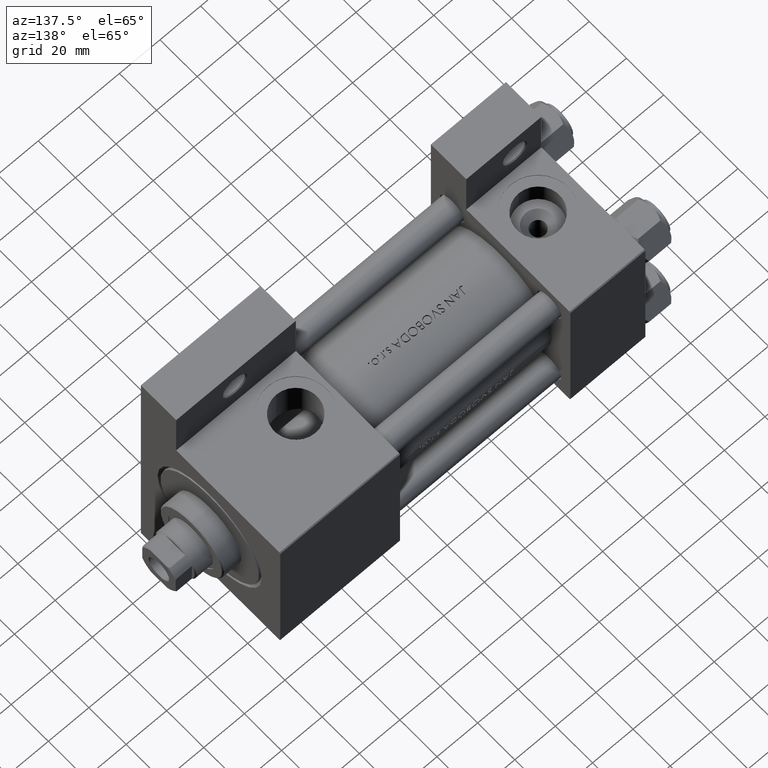
[diagram: clean part render]
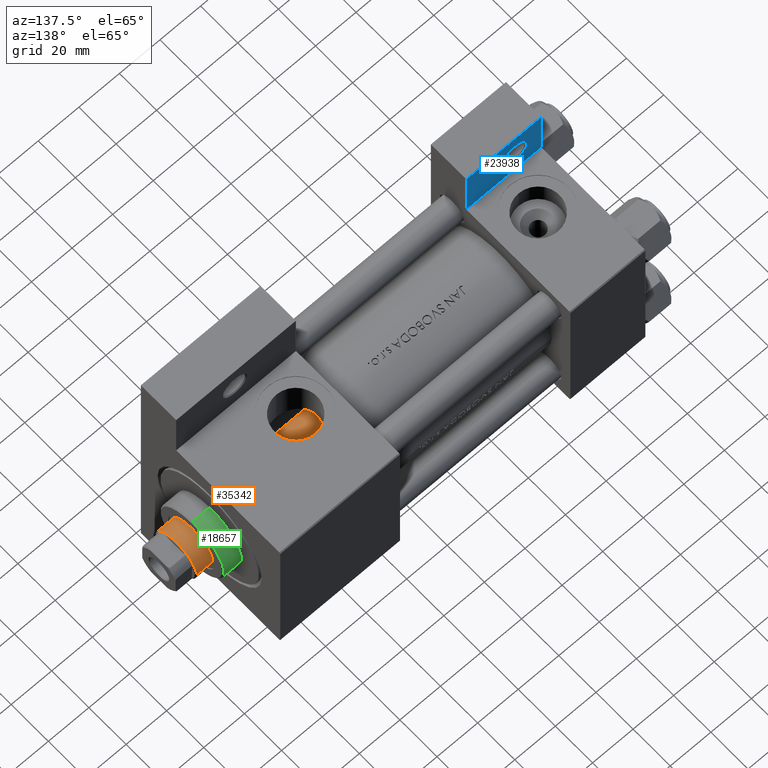
[diagram: same view with three faces highlighted in distinct colors, each labeled with its STEP entity id]
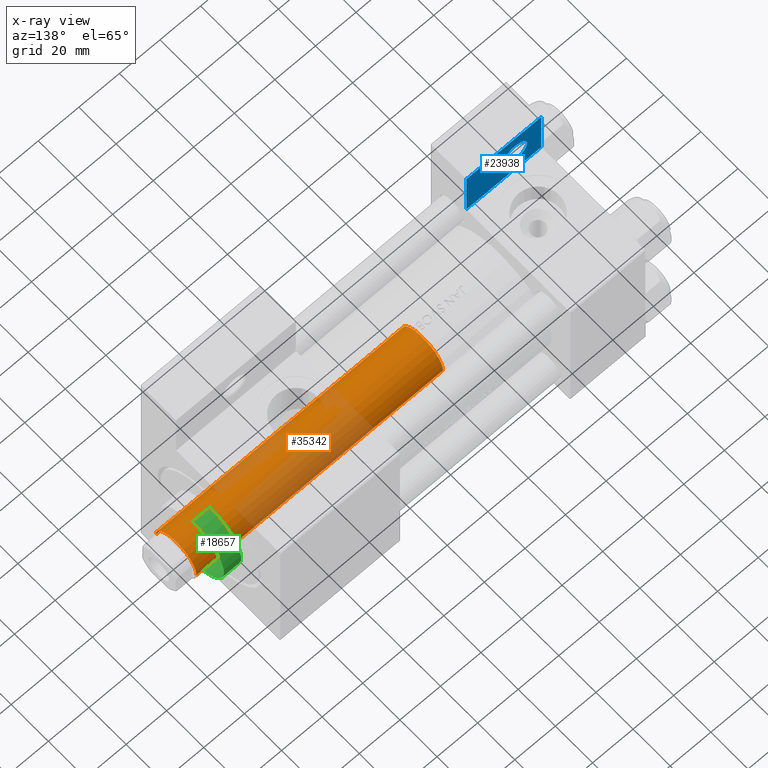
[diagram: x-ray of the same camera — body ghosted, the three highlighted faces saturated]
A machine part, auxiliary view with three faces highlighted in distinct colors.
The next image is the same camera in x-ray (body ghosted, the three faces saturated) — at least one of them is partly hidden behind the body in this view.
Their STEP definitions:

[orange] entity #35342 — the highlighted cylindrical surface (edge-blend (fillet) strip) has radius 11 mm, axis along (-1, 0, 0).
#480 = VERTEX_POINT ( 'NONE', #23923 ) ;
#1295 = DIRECTION ( 'NONE',  ( -0.000000000000000000, -0.000000000000000000, -1.000000000000000000 ) ) ;
#1781 = LINE ( 'NONE', #20448, #4242 ) ;
#3460 = ORIENTED_EDGE ( 'NONE', *, *, #4768, .F. ) ;
#4242 = VECTOR ( 'NONE', #1295, 1000.000000000000000 ) ;
#4662 = DIRECTION ( 'NONE',  ( -1.000000000000000000, 0.000000000000000000, 0.000000000000000000 ) ) ;
#4768 = EDGE_CURVE ( 'NONE', #16381, #49233, #35854, .T. ) ;
#5662 = AXIS2_PLACEMENT_3D ( 'NONE', #8411, #38769, #4662 ) ;
#6436 = EDGE_CURVE ( 'NONE', #480, #49233, #38948, .T. ) ;
#6494 = CARTESIAN_POINT ( 'NONE',  ( 0.000000000000000000, 0.000000000000000000, 159.5000000000000853 ) ) ;
#8411 = CARTESIAN_POINT ( 'NONE',  ( 0.000000000000000000, 0.000000000000000000, 160.0000000000000000 ) ) ;
#11604 = ORIENTED_EDGE ( 'NONE', *, *, #39563, .T. ) ;
#11642 = DIRECTION ( 'NONE',  ( 1.000000000000000000, 0.000000000000000000, 0.000000000000000000 ) ) ;
#12618 = CARTESIAN_POINT ( 'NONE',  ( 0.000000000000000000, 0.000000000000000000, 38.00000000000000000 ) ) ;
#16381 = VERTEX_POINT ( 'NONE', #37018 ) ;
#19588 = VERTEX_POINT ( 'NONE', #34887 ) ;
#20331 = DIRECTION ( 'NONE',  ( 0.000000000000000000, 0.000000000000000000, 1.000000000000000000 ) ) ;
#20448 = CARTESIAN_POINT ( 'NONE',  ( -11.00000000000000000, 0.000000000000000000, 160.0000000000000000 ) ) ;
#22221 = ORIENTED_EDGE ( 'NONE', *, *, #48637, .T. ) ;
#22695 = ORIENTED_EDGE ( 'NONE', *, *, #6436, .T. ) ;
#23923 = CARTESIAN_POINT ( 'NONE',  ( -11.00000000000000000, 0.000000000000000000, 38.00000000000000000 ) ) ;
#24242 = DIRECTION ( 'NONE',  ( 0.000000000000000000, 0.000000000000000000, -1.000000000000000000 ) ) ;
#24274 = AXIS2_PLACEMENT_3D ( 'NONE', #6494, #24242, #39424 ) ;
#24556 = CYLINDRICAL_SURFACE ( 'NONE', #5662, 11.00000000000000000 ) ;
#24640 = DIRECTION ( 'NONE',  ( -0.000000000000000000, -0.000000000000000000, -1.000000000000000000 ) ) ;
#33811 = CIRCLE ( 'NONE', #24274, 11.00000000000000000 ) ;
#34158 = AXIS2_PLACEMENT_3D ( 'NONE', #12618, #20331, #11642 ) ;
#34887 = CARTESIAN_POINT ( 'NONE',  ( -11.00000000000000000, 0.000000000000000000, 159.5000000000000853 ) ) ;
#35135 = CARTESIAN_POINT ( 'NONE',  ( 11.00000000000000000, 1.347111479062088207E-15, 160.0000000000000000 ) ) ;
#35342 = ADVANCED_FACE ( 'NONE', ( #42742 ), #24556, .T. ) ;
#35854 = LINE ( 'NONE', #35135, #47670 ) ;
#36146 = EDGE_LOOP ( 'NONE', ( #3460, #22221, #11604, #22695 ) ) ;
#37018 = CARTESIAN_POINT ( 'NONE',  ( 11.00000000000000000, 1.347111479062088207E-15, 159.5000000000000853 ) ) ;
#38769 = DIRECTION ( 'NONE',  ( -0.000000000000000000, -0.000000000000000000, -1.000000000000000000 ) ) ;
#38948 = CIRCLE ( 'NONE', #34158, 11.00000000000000000 ) ;
#39424 = DIRECTION ( 'NONE',  ( 1.000000000000000000, 0.000000000000000000, 0.000000000000000000 ) ) ;
#39563 = EDGE_CURVE ( 'NONE', #19588, #480, #1781, .T. ) ;
#40723 = CARTESIAN_POINT ( 'NONE',  ( 11.00000000000000000, 1.347111479062088207E-15, 38.00000000000000000 ) ) ;
#42742 = FACE_OUTER_BOUND ( 'NONE', #36146, .T. ) ;
#47670 = VECTOR ( 'NONE', #24640, 1000.000000000000000 ) ;
#48637 = EDGE_CURVE ( 'NONE', #16381, #19588, #33811, .T. ) ;
#49233 = VERTEX_POINT ( 'NONE', #40723 ) ;

[blue] entity #23938 — the highlighted planar face has unit normal (0, -1, 0).
#2466 = VERTEX_POINT ( 'NONE', #16027 ) ;
#3847 = DIRECTION ( 'NONE',  ( -1.000000000000000000, 0.000000000000000000, 0.000000000000000000 ) ) ;
#5033 = CARTESIAN_POINT ( 'NONE',  ( 12.99999999999999822, -51.00000000000001421, -18.50000000000000000 ) ) ;
#5377 = PLANE ( 'NONE',  #26876 ) ;
#9112 = LINE ( 'NONE', #9611, #16830 ) ;
#9460 = ORIENTED_EDGE ( 'NONE', *, *, #39034, .T. ) ;
#9611 = CARTESIAN_POINT ( 'NONE',  ( 37.00000000000000000, -63.49999999999998579, -18.50000000000000355 ) ) ;
#10049 = ORIENTED_EDGE ( 'NONE', *, *, #29887, .T. ) ;
#11003 = ORIENTED_EDGE ( 'NONE', *, *, #20732, .T. ) ;
#11821 = EDGE_LOOP ( 'NONE', ( #10049, #9460 ) ) ;
#12511 = DIRECTION ( 'NONE',  ( -1.000000000000000000, 0.000000000000000000, 0.000000000000000000 ) ) ;
#12535 = LINE ( 'NONE', #37941, #21779 ) ;
#12685 = CARTESIAN_POINT ( 'NONE',  ( 3.977209754999747208E-16, -63.50000000000000000, -18.50000000000000355 ) ) ;
#12780 = CIRCLE ( 'NONE', #38219, 5.999500000000050015 ) ;
#12863 = FACE_BOUND ( 'NONE', #11821, .T. ) ;
#16027 = CARTESIAN_POINT ( 'NONE',  ( 37.00000000000000000, -37.50000000000000000, -18.50000000000000355 ) ) ;
#16830 = VECTOR ( 'NONE', #17331, 1000.000000000000000 ) ;
#17286 = LINE ( 'NONE', #33211, #33071 ) ;
#17331 = DIRECTION ( 'NONE',  ( -0.000000000000000000, 1.000000000000000000, 0.000000000000000000 ) ) ;
#17583 = CARTESIAN_POINT ( 'NONE',  ( 0.000000000000000000, 0.000000000000000000, -18.50000000000000000 ) ) ;
#17839 = CARTESIAN_POINT ( 'NONE',  ( 37.00000000000000000, -63.50000000000000000, -18.50000000000000355 ) ) ;
#18029 = DIRECTION ( 'NONE',  ( 1.000000000000000000, 0.000000000000000000, 0.000000000000000000 ) ) ;
#20732 = EDGE_CURVE ( 'NONE', #25013, #29356, #17286, .T. ) ;
#21285 = VERTEX_POINT ( 'NONE', #34014 ) ;
#21779 = VECTOR ( 'NONE', #3847, 1000.000000000000000 ) ;
#21788 = DIRECTION ( 'NONE',  ( 0.000000000000000000, 0.000000000000000000, -1.000000000000000000 ) ) ;
#22464 = AXIS2_PLACEMENT_3D ( 'NONE', #48956, #25784, #33513 ) ;
#23938 = ADVANCED_FACE ( 'NONE', ( #12863, #39484 ), #5377, .F. ) ;
#24305 = CARTESIAN_POINT ( 'NONE',  ( 18.99950000000004735, -51.00000000000001421, -18.50000000000000000 ) ) ;
#24743 = DIRECTION ( 'NONE',  ( 4.278042683914906889E-17, -1.000000000000000000, 0.000000000000000000 ) ) ;
#25013 = VERTEX_POINT ( 'NONE', #12685 ) ;
#25784 = DIRECTION ( 'NONE',  ( 0.000000000000000000, 0.000000000000000000, -1.000000000000000000 ) ) ;
#26876 = AXIS2_PLACEMENT_3D ( 'NONE', #17583, #21788, #44444 ) ;
#27807 = CARTESIAN_POINT ( 'NONE',  ( 7.000499999999947320, -51.00000000000001421, -18.50000000000000000 ) ) ;
#27923 = DIRECTION ( 'NONE',  ( 0.000000000000000000, 0.000000000000000000, -1.000000000000000000 ) ) ;
#28959 = CARTESIAN_POINT ( 'NONE',  ( 3.977209754999744250E-16, -63.49999999999998579, -18.50000000000000355 ) ) ;
#29356 = VERTEX_POINT ( 'NONE', #17839 ) ;
#29887 = EDGE_CURVE ( 'NONE', #32548, #38306, #12780, .T. ) ;
#30417 = EDGE_LOOP ( 'NONE', ( #32808, #48060, #46535, #11003 ) ) ;
#32548 = VERTEX_POINT ( 'NONE', #24305 ) ;
#32808 = ORIENTED_EDGE ( 'NONE', *, *, #36462, .T. ) ;
#33071 = VECTOR ( 'NONE', #18029, 1000.000000000000000 ) ;
#33211 = CARTESIAN_POINT ( 'NONE',  ( 3.977209754999747208E-16, -63.50000000000000000, -18.50000000000000355 ) ) ;
#33513 = DIRECTION ( 'NONE',  ( -1.000000000000000000, 0.000000000000000000, 0.000000000000000000 ) ) ;
#34014 = CARTESIAN_POINT ( 'NONE',  ( -7.145701223179004046E-16, -37.50000000000000711, -18.50000000000000355 ) ) ;
#36462 = EDGE_CURVE ( 'NONE', #29356, #2466, #9112, .T. ) ;
#37381 = EDGE_CURVE ( 'NONE', #21285, #25013, #49022, .T. ) ;
#37941 = CARTESIAN_POINT ( 'NONE',  ( -7.145701223179000102E-16, -37.50000000000001421, -18.49999999999999645 ) ) ;
#38219 = AXIS2_PLACEMENT_3D ( 'NONE', #5033, #27923, #12511 ) ;
#38306 = VERTEX_POINT ( 'NONE', #27807 ) ;
#39034 = EDGE_CURVE ( 'NONE', #38306, #32548, #40771, .T. ) ;
#39484 = FACE_OUTER_BOUND ( 'NONE', #30417, .T. ) ;
#40771 = CIRCLE ( 'NONE', #22464, 5.999500000000050015 ) ;
#42026 = EDGE_CURVE ( 'NONE', #2466, #21285, #12535, .T. ) ;
#44444 = DIRECTION ( 'NONE',  ( -1.000000000000000000, 0.000000000000000000, -0.000000000000000000 ) ) ;
#46301 = VECTOR ( 'NONE', #24743, 1000.000000000000000 ) ;
#46535 = ORIENTED_EDGE ( 'NONE', *, *, #37381, .T. ) ;
#48060 = ORIENTED_EDGE ( 'NONE', *, *, #42026, .T. ) ;
#48956 = CARTESIAN_POINT ( 'NONE',  ( 12.99999999999999822, -51.00000000000001421, -18.50000000000000000 ) ) ;
#49022 = LINE ( 'NONE', #28959, #46301 ) ;

[green] entity #18657 — the highlighted cylindrical surface (partial cylindrical patch) has radius 17 mm, axis along (-1, -0, 0).
#1715 = CARTESIAN_POINT ( 'NONE',  ( 0.000000000000000000, 0.000000000000000000, 28.69999999999999929 ) ) ;
#5776 = VERTEX_POINT ( 'NONE', #42116 ) ;
#6171 = EDGE_CURVE ( 'NONE', #39081, #5776, #41328, .T. ) ;
#7213 = VECTOR ( 'NONE', #43678, 1000.000000000000000 ) ;
#8915 = ORIENTED_EDGE ( 'NONE', *, *, #34165, .T. ) ;
#9907 = ORIENTED_EDGE ( 'NONE', *, *, #6171, .T. ) ;
#11567 = EDGE_CURVE ( 'NONE', #46230, #5776, #15255, .T. ) ;
#11749 = DIRECTION ( 'NONE',  ( -0.000000000000000000, -0.000000000000000000, -1.000000000000000000 ) ) ;
#15255 = LINE ( 'NONE', #27411, #42954 ) ;
#15904 = LINE ( 'NONE', #36209, #7213 ) ;
#17571 = AXIS2_PLACEMENT_3D ( 'NONE', #22100, #37290, #34053 ) ;
#18657 = ADVANCED_FACE ( 'NONE', ( #30227 ), #41912, .T. ) ;
#19030 = ORIENTED_EDGE ( 'NONE', *, *, #30487, .T. ) ;
#19388 = EDGE_LOOP ( 'NONE', ( #8915, #19030, #9907, #33291 ) ) ;
#19763 = DIRECTION ( 'NONE',  ( -0.000000000000000000, -0.000000000000000000, -1.000000000000000000 ) ) ;
#20132 = CARTESIAN_POINT ( 'NONE',  ( 17.00000000000000000, 2.081899558550500280E-15, 37.19999999999999574 ) ) ;
#21451 = AXIS2_PLACEMENT_3D ( 'NONE', #1715, #36064, #39544 ) ;
#22100 = CARTESIAN_POINT ( 'NONE',  ( 0.000000000000000000, 0.000000000000000000, 37.19999999999999574 ) ) ;
#26732 = CARTESIAN_POINT ( 'NONE',  ( 0.000000000000000000, 0.000000000000000000, 37.69999999999999574 ) ) ;
#27411 = CARTESIAN_POINT ( 'NONE',  ( -17.00000000000000000, 0.000000000000000000, 37.69999999999999574 ) ) ;
#30227 = FACE_OUTER_BOUND ( 'NONE', #19388, .T. ) ;
#30487 = EDGE_CURVE ( 'NONE', #31405, #39081, #15904, .T. ) ;
#31405 = VERTEX_POINT ( 'NONE', #20132 ) ;
#33291 = ORIENTED_EDGE ( 'NONE', *, *, #11567, .F. ) ;
#33992 = CARTESIAN_POINT ( 'NONE',  ( 17.00000000000000000, 2.081899558550500280E-15, 28.69999999999999929 ) ) ;
#34053 = DIRECTION ( 'NONE',  ( 1.000000000000000000, 0.000000000000000000, 0.000000000000000000 ) ) ;
#34165 = EDGE_CURVE ( 'NONE', #46230, #31405, #36647, .T. ) ;
#36064 = DIRECTION ( 'NONE',  ( 0.000000000000000000, 0.000000000000000000, 1.000000000000000000 ) ) ;
#36209 = CARTESIAN_POINT ( 'NONE',  ( 17.00000000000000000, 2.081899558550500280E-15, 37.69999999999999574 ) ) ;
#36647 = CIRCLE ( 'NONE', #17571, 17.00000000000000000 ) ;
#37290 = DIRECTION ( 'NONE',  ( 0.000000000000000000, 0.000000000000000000, -1.000000000000000000 ) ) ;
#39081 = VERTEX_POINT ( 'NONE', #33992 ) ;
#39544 = DIRECTION ( 'NONE',  ( 1.000000000000000000, 0.000000000000000000, 0.000000000000000000 ) ) ;
#41328 = CIRCLE ( 'NONE', #21451, 17.00000000000000000 ) ;
#41912 = CYLINDRICAL_SURFACE ( 'NONE', #47205, 17.00000000000000000 ) ;
#42116 = CARTESIAN_POINT ( 'NONE',  ( -17.00000000000000000, 0.000000000000000000, 28.69999999999999929 ) ) ;
#42954 = VECTOR ( 'NONE', #11749, 1000.000000000000000 ) ;
#43678 = DIRECTION ( 'NONE',  ( -0.000000000000000000, -0.000000000000000000, -1.000000000000000000 ) ) ;
#45427 = DIRECTION ( 'NONE',  ( -1.000000000000000000, 0.000000000000000000, 0.000000000000000000 ) ) ;
#46230 = VERTEX_POINT ( 'NONE', #46739 ) ;
#46739 = CARTESIAN_POINT ( 'NONE',  ( -17.00000000000000000, 0.000000000000000000, 37.19999999999999574 ) ) ;
#47205 = AXIS2_PLACEMENT_3D ( 'NONE', #26732, #19763, #45427 ) ;